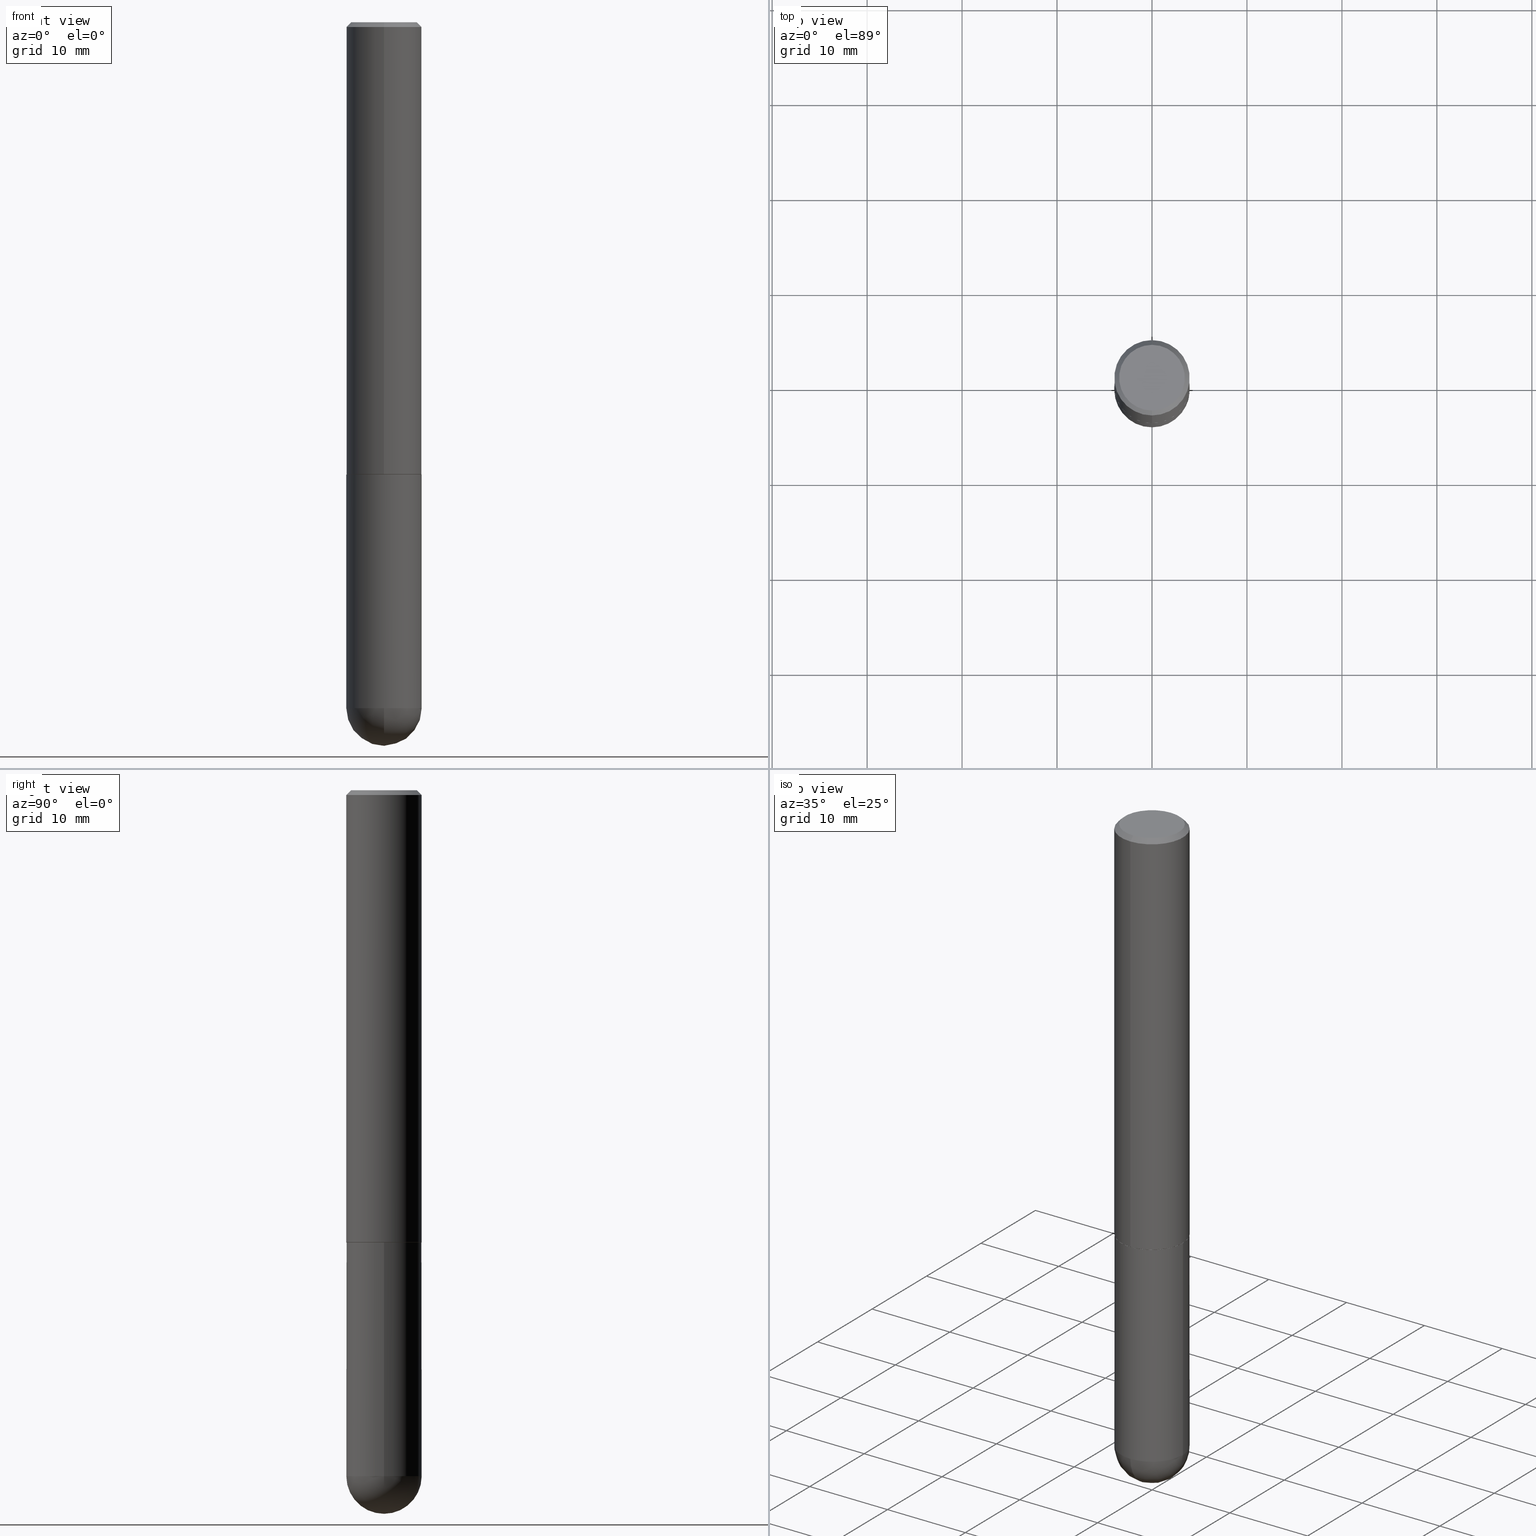
[diagram: canonical four-view strip — front | top / right | iso, engineering-drawing reading convention]
A machine part, canonical four-view strip (front | top / right | iso — engineering-drawing reading convention). The complete STEP part file that produces these views, byte-faithful:
ISO-10303-21;
HEADER;
FILE_DESCRIPTION (( 'STEP AP203' ),
    '1' );
FILE_NAME ('70450.STEP',
    '2024-04-10T12:32:51',
    ( '' ),
    ( '' ),
    'SwSTEP 2.0',
    'SolidWorks 2023',
    '' );
FILE_SCHEMA (( 'CONFIG_CONTROL_DESIGN' ));
ENDSEC;

DATA;
#1 = FACE_OUTER_BOUND ( 'NONE', #37, .T. ) ;
#2 = DIRECTION ( 'NONE',  ( -6.982962677686266711E-15, -1.000000000000000000, 3.492105978576687253E-15 ) ) ;
#3 = DIRECTION ( 'NONE',  ( -6.982962677686265922E-15, -1.000000000000000000, 3.492105978576687648E-15 ) ) ;
#4 = ADVANCED_FACE ( 'NONE', ( #7 ), #5, .T. ) ;
#5 = CONICAL_SURFACE ( 'NONE', #151, 0.1562500000000000000, 0.7853981633974471688 ) ;
#6 = APPROVAL_PERSON_ORGANIZATION ( #332, #121, #397 ) ;
#7 = FACE_OUTER_BOUND ( 'NONE', #19, .T. ) ;
#8 = CARTESIAN_POINT ( 'NONE',  ( 0.000000000000000000, 0.000000000000000000, 0.000000000000000000 ) ) ;
#9 = ADVANCED_FACE ( 'NONE', ( #166 ), #401, .T. ) ;
#10 = CARTESIAN_POINT ( 'NONE',  ( -1.071952812151801215E-15, -0.1562500000000000833, -0.01999999999999948694 ) ) ;
#11 = COORDINATED_UNIVERSAL_TIME_OFFSET ( 5, 0, .BEHIND. ) ;
#12 = AXIS2_PLACEMENT_3D ( 'NONE', #119, #138, #69 ) ;
#13 = AXIS2_PLACEMENT_3D ( 'NONE', #212, #207, #338 ) ;
#14 = DATE_AND_TIME ( #269, #263 ) ;
#15 = ORIENTED_EDGE ( 'NONE', *, *, #169, .T. ) ;
#16 = ADVANCED_FACE ( 'NONE', ( #241 ), #178, .T. ) ;
#17 = CARTESIAN_POINT ( 'NONE',  ( 1.110223024625157329E-15, 0.1562500000000001388, -5.456415591526079257E-16 ) ) ;
#18 = DIRECTION ( 'NONE',  ( 4.937700262164541731E-15, 0.7071067811865442421, -0.7071067811865507924 ) ) ;
#19 = EDGE_LOOP ( 'NONE', ( #402, #295, #337, #40 ) ) ;
#20 = DIRECTION ( 'NONE',  ( 6.982962677686265922E-15, 1.000000000000000000, 0.000000000000000000 ) ) ;
#21 = CARTESIAN_POINT ( 'NONE',  ( 0.000000000000000000, 0.000000000000000000, 0.000000000000000000 ) ) ;
#22 = FACE_OUTER_BOUND ( 'NONE', #246, .T. ) ;
#23 = AXIS2_PLACEMENT_3D ( 'NONE', #114, #367, #111 ) ;
#24 = ORIENTED_EDGE ( 'NONE', *, *, #407, .T. ) ;
#25 = DIRECTION ( 'NONE',  ( -2.445032622590504256E-29, 3.492105978576687648E-15, 1.000000000000000000 ) ) ;
#26 = CARTESIAN_POINT ( 'NONE',  ( -0.1562500000000000000, 1.110223024625156540E-15, -7.685836078523291160E-30 ) ) ;
#27 = EDGE_CURVE ( 'NONE', #261, #381, #289, .T. ) ;
#28 = VECTOR ( 'NONE', #120, 39.37007874015748143 ) ;
#29 = CIRCLE ( 'NONE', #335, 0.1562500000000000000 ) ;
#30 = CARTESIAN_POINT ( 'NONE',  ( -1.084104955710747011E-15, -0.1552500000000065494, -1.874999999999999556 ) ) ;
#31 = FACE_OUTER_BOUND ( 'NONE', #90, .T. ) ;
#32 = SPHERICAL_SURFACE ( 'NONE', #308, 0.1562500000000001110 ) ;
#33 = ADVANCED_FACE ( 'NONE', ( #31 ), #386, .T. ) ;
#34 = CARTESIAN_POINT ( 'NONE',  ( 4.585254011597131119E-29, -6.546527510330898707E-15, -1.875000000000000000 ) ) ;
#35 =( NAMED_UNIT ( * ) PLANE_ANGLE_UNIT ( ) SI_UNIT ( $, .RADIAN. ) );
#36 = AXIS2_PLACEMENT_3D ( 'NONE', #86, #25, #250 ) ;
#37 = EDGE_LOOP ( 'NONE', ( #237, #272 ) ) ;
#38 = APPROVAL_STATUS ( 'not_yet_approved' ) ;
#39 = DIRECTION ( 'NONE',  ( 6.982962677686265133E-15, 1.000000000000000000, -3.496765431890256920E-15 ) ) ;
#40 = ORIENTED_EDGE ( 'NONE', *, *, #227, .T. ) ;
#41 = APPROVAL_DATE_TIME ( #232, #121 ) ;
#42 = ORIENTED_EDGE ( 'NONE', *, *, #94, .T. ) ;
#43 = DIRECTION ( 'NONE',  ( 1.000000000000000000, 0.000000000000000000, 0.000000000000000000 ) ) ;
#44 = CC_DESIGN_SECURITY_CLASSIFICATION ( #365, ( #158 ) ) ;
#45 = ORIENTED_EDGE ( 'NONE', *, *, #109, .F. ) ;
#46 = PERSON_AND_ORGANIZATION ( #278, #128 ) ;
#47 = ADVANCED_FACE ( 'NONE', ( #204 ), #173, .F. ) ;
#48 = PRODUCT ( '70450', '70450', '', ( #268 ) ) ;
#49 = EDGE_CURVE ( 'NONE', #97, #223, #273, .T. ) ;
#50 = DIRECTION ( 'NONE',  ( 5.024295867788490741E-15, 0.7071067811866103003, 0.7071067811864847341 ) ) ;
#51 = DIRECTION ( 'NONE',  ( -6.982962677686266711E-15, -1.000000000000000000, 3.492105978576687253E-15 ) ) ;
#52 = ORIENTED_EDGE ( 'NONE', *, *, #313, .F. ) ;
#53 = CIRCLE ( 'NONE', #118, 0.1362499999999992051 ) ;
#54 = PRODUCT_DEFINITION_SHAPE ( 'NONE', 'NONE',  #233 ) ;
#55 = ORIENTED_EDGE ( 'NONE', *, *, #49, .T. ) ;
#56 = DIRECTION ( 'NONE',  ( -2.445032622590504256E-29, 3.492105978576687648E-15, 1.000000000000000000 ) ) ;
#57 = CARTESIAN_POINT ( 'NONE',  ( 0.000000000000000000, 0.000000000000000000, 0.000000000000000000 ) ) ;
#58 = DIRECTION ( 'NONE',  ( -6.982962677686265922E-15, -1.000000000000000000, 3.492105978576687648E-15 ) ) ;
#59 = UNCERTAINTY_MEASURE_WITH_UNIT (LENGTH_MEASURE( 1.000000000000000082E-05 ), #160, 'distance_accuracy_value', 'NONE');
#60 = AXIS2_PLACEMENT_3D ( 'NONE', #253, #404, #51 ) ;
#61 = CC_DESIGN_APPROVAL ( #121, ( #365 ) ) ;
#62 = DIRECTION ( 'NONE',  ( -6.982962677686265133E-15, -1.000000000000000000, 3.496765431890256920E-15 ) ) ;
#63 = VERTEX_POINT ( 'NONE', #406 ) ;
#64 = EDGE_CURVE ( 'NONE', #369, #97, #198, .T. ) ;
#65 = DIRECTION ( 'NONE',  ( 6.982962677686265922E-15, 1.000000000000000000, -3.496765431890254553E-15 ) ) ;
#66 = VERTEX_POINT ( 'NONE', #193 ) ;
#67 = CARTESIAN_POINT ( 'NONE',  ( 0.000000000000000000, 0.000000000000000000, 0.000000000000000000 ) ) ;
#68 = AXIS2_PLACEMENT_3D ( 'NONE', #57, #310, #221 ) ;
#69 = DIRECTION ( 'NONE',  ( -6.982962677686265922E-15, -1.000000000000000000, 3.496765431890251398E-15 ) ) ;
#70 = CC_DESIGN_PERSON_AND_ORGANIZATION_ASSIGNMENT ( #167, #202, ( #158 ) ) ;
#71 = ORIENTED_EDGE ( 'NONE', *, *, #288, .F. ) ;
#72 = ORIENTED_EDGE ( 'NONE', *, *, #288, .T. ) ;
#73 = AXIS2_PLACEMENT_3D ( 'NONE', #255, #242, #58 ) ;
#74 = CIRCLE ( 'NONE', #307, 0.1562500000000000000 ) ;
#75 = AXIS2_PLACEMENT_3D ( 'NONE', #8, #194, #157 ) ;
#76 = CALENDAR_DATE ( 2024, 10, 4 ) ;
#77 = APPROVAL ( #38, 'UNSPECIFIED' ) ;
#78 = PERSON_AND_ORGANIZATION_ROLE ( 'classification_officer' ) ;
#79 = APPROVAL_ROLE ( '' ) ;
#80 = AXIS2_PLACEMENT_3D ( 'NONE', #21, #247, #303 ) ;
#81 = PERSON_AND_ORGANIZATION_ROLE ( 'design_owner' ) ;
#82 = CC_DESIGN_APPROVAL ( #77, ( #158 ) ) ;
#83 = PRODUCT_RELATED_PRODUCT_CATEGORY ( 'detail', '', ( #48 ) ) ;
#84 = DIRECTION ( 'NONE',  ( -2.445032622590504256E-29, 3.492105978576687648E-15, 1.000000000000000000 ) ) ;
#85 = CARTESIAN_POINT ( 'NONE',  ( -1.091087918388479962E-15, -0.1562500000000001388, 5.456415591526079257E-16 ) ) ;
#86 = CARTESIAN_POINT ( 'NONE',  ( 4.584436167357195620E-29, -6.547698709831289980E-15, -1.875000000000000000 ) ) ;
#87 = CC_DESIGN_PERSON_AND_ORGANIZATION_ASSIGNMENT ( #46, #229, ( #233 ) ) ;
#88 = DIMENSIONAL_EXPONENTS ( 1.000000000000000000, 0.000000000000000000, 0.000000000000000000, 0.000000000000000000, 0.000000000000000000, 0.000000000000000000, 0.000000000000000000 ) ;
#89 = CARTESIAN_POINT ( 'NONE',  ( 4.585254011597131119E-29, -6.546527510330898707E-15, -1.875000000000000000 ) ) ;
#90 = EDGE_LOOP ( 'NONE', ( #383, #211, #154, #134 ) ) ;
#91 = CARTESIAN_POINT ( 'NONE',  ( 6.623182139675095950E-29, -1.040308242547524746E-14, -2.843750000000000000 ) ) ;
#92 = ORIENTED_EDGE ( 'NONE', *, *, #226, .F. ) ;
#93 = CARTESIAN_POINT ( 'NONE',  ( 1.103117597267601089E-15, 0.1552499999999934488, -1.875000000000000666 ) ) ;
#94 = EDGE_CURVE ( 'NONE', #159, #66, #392, .T. ) ;
#95 = VECTOR ( 'NONE', #275, 39.37007874015748143 ) ;
#96 = CARTESIAN_POINT ( 'NONE',  ( -1.110223024625088698E-15, -0.1562500000000102418, -2.843749999999999556 ) ) ;
#97 = VERTEX_POINT ( 'NONE', #177 ) ;
#98 = DIRECTION ( 'NONE',  ( -4.937700262164969294E-15, -0.7071067811866054154, 0.7071067811864896191 ) ) ;
#99 = ORIENTED_EDGE ( 'NONE', *, *, #64, .T. ) ;
#100 =( GEOMETRIC_REPRESENTATION_CONTEXT ( 3 ) GLOBAL_UNCERTAINTY_ASSIGNED_CONTEXT ( ( #59 ) ) GLOBAL_UNIT_ASSIGNED_CONTEXT ( ( #160, #35, #224 ) ) REPRESENTATION_CONTEXT ( 'NONE', 'WORKASPACE' ) );
#101 = ORIENTED_EDGE ( 'NONE', *, *, #190, .F. ) ;
#102 = CARTESIAN_POINT ( 'NONE',  ( 6.623182139675095950E-29, -1.040308242547524746E-14, -2.843750000000000000 ) ) ;
#103 = DIRECTION ( 'NONE',  ( -2.445032622590504256E-29, 3.492105978576687648E-15, 1.000000000000000000 ) ) ;
#104 = APPROVAL_STATUS ( 'not_yet_approved' ) ;
#105 = EDGE_CURVE ( 'NONE', #285, #223, #127, .T. ) ;
#106 = APPROVAL_PERSON_ORGANIZATION ( #266, #139, #197 ) ;
#107 = COORDINATED_UNIVERSAL_TIME_OFFSET ( 5, 0, .BEHIND. ) ;
#108 = PERSON_AND_ORGANIZATION_ROLE ( 'design_supplier' ) ;
#109 = EDGE_CURVE ( 'NONE', #285, #116, #364, .T. ) ;
#110 = CARTESIAN_POINT ( 'NONE',  ( 4.890065245181016640E-31, -6.984211957153386487E-17, -0.02000000000000003511 ) ) ;
#111 = DIRECTION ( 'NONE',  ( -6.982962677686265922E-15, -1.000000000000000000, 3.519288880726909138E-15 ) ) ;
#112 = CARTESIAN_POINT ( 'NONE',  ( -1.084104955710747011E-15, -0.1552500000000065494, -1.874999999999999556 ) ) ;
#113 = ORIENTED_EDGE ( 'NONE', *, *, #105, .T. ) ;
#114 = CARTESIAN_POINT ( 'NONE',  ( 4.584436167357195620E-29, -6.547698709831289980E-15, -1.875000000000000000 ) ) ;
#115 = EDGE_CURVE ( 'NONE', #66, #252, #346, .T. ) ;
#116 = VERTEX_POINT ( 'NONE', #185 ) ;
#117 = DIRECTION ( 'NONE',  ( -6.982962677686265922E-15, -1.000000000000000000, 3.496765431890251398E-15 ) ) ;
#118 = AXIS2_PLACEMENT_3D ( 'NONE', #351, #103, #2 ) ;
#119 = CARTESIAN_POINT ( 'NONE',  ( 4.581991134734604485E-29, -6.544206603852712761E-15, -1.874000000000000110 ) ) ;
#120 = DIRECTION ( 'NONE',  ( -4.851104656540957964E-15, -0.7071067811865491270, -0.7071067811865459074 ) ) ;
#121 = APPROVAL ( #329, 'UNSPECIFIED' ) ;
#122 = ADVANCED_FACE ( 'NONE', ( #403 ), #143, .T. ) ;
#123 = EDGE_LOOP ( 'NONE', ( #297, #305, #125, #244 ) ) ;
#124 = PLANE ( 'NONE',  #73 ) ;
#125 = ORIENTED_EDGE ( 'NONE', *, *, #389, .F. ) ;
#126 = DIRECTION ( 'NONE',  ( -2.445468806185136597E-29, 3.491481338843145583E-15, 1.000000000000000000 ) ) ;
#127 = LINE ( 'NONE', #10, #28 ) ;
#128 = ORGANIZATION ( 'UNSPECIFIED', 'UNSPECIFIED', '' ) ;
#129 = DIRECTION ( 'NONE',  ( 6.982962677686265922E-15, 1.000000000000000000, -3.492105978576687648E-15 ) ) ;
#130 = EDGE_LOOP ( 'NONE', ( #42, #254, #222, #235, #72 ) ) ;
#131 = DIRECTION ( 'NONE',  ( 1.000000000000000000, -6.982962677686262766E-15, 0.000000000000000000 ) ) ;
#132 = DIRECTION ( 'NONE',  ( -2.445468806185136877E-29, 3.491481338843145188E-15, 1.000000000000000000 ) ) ;
#133 = VECTOR ( 'NONE', #282, 39.37007874015748143 ) ;
#134 = ORIENTED_EDGE ( 'NONE', *, *, #94, .F. ) ;
#135 = FACE_OUTER_BOUND ( 'NONE', #366, .T. ) ;
#136 = EDGE_CURVE ( 'NONE', #150, #252, #330, .T. ) ;
#137 = AXIS2_PLACEMENT_3D ( 'NONE', #34, #384, #353 ) ;
#138 = DIRECTION ( 'NONE',  ( -2.445032622590504256E-29, 3.492105978576687648E-15, 1.000000000000000000 ) ) ;
#139 = APPROVAL ( #104, 'UNSPECIFIED' ) ;
#140 = APPLICATION_PROTOCOL_DEFINITION ( 'international standard', 'config_control_design', 1994, #334 ) ;
#141 = CALENDAR_DATE ( 2024, 10, 4 ) ;
#142 = ORIENTED_EDGE ( 'NONE', *, *, #64, .F. ) ;
#143 = CONICAL_SURFACE ( 'NONE', #257, 0.1552499999999999991, 0.7853981633975336552 ) ;
#144 = AXIS2_PLACEMENT_3D ( 'NONE', #89, #314, #152 ) ;
#145 = CARTESIAN_POINT ( 'NONE',  ( 1.091087918388547213E-15, 0.1562499999999898970, -2.843750000000000444 ) ) ;
#146 = CC_DESIGN_DATE_AND_TIME_ASSIGNMENT ( #359, #362, ( #233 ) ) ;
#147 = DIRECTION ( 'NONE',  ( -2.445468806185136597E-29, 3.491481338843145583E-15, 1.000000000000000000 ) ) ;
#148 = ORIENTED_EDGE ( 'NONE', *, *, #248, .F. ) ;
#149 = CARTESIAN_POINT ( 'NONE',  ( 0.1562500000000000000, -9.328801702221526319E-15, -2.843750000000000000 ) ) ;
#150 = VERTEX_POINT ( 'NONE', #344 ) ;
#151 = AXIS2_PLACEMENT_3D ( 'NONE', #361, #358, #39 ) ;
#152 = DIRECTION ( 'NONE',  ( 1.000000000000000000, -6.982962677686269077E-15, 0.000000000000000000 ) ) ;
#153 = ADVANCED_FACE ( 'NONE', ( #22 ), #124, .F. ) ;
#154 = ORIENTED_EDGE ( 'NONE', *, *, #115, .F. ) ;
#155 = LINE ( 'NONE', #93, #208 ) ;
#156 = DIRECTION ( 'NONE',  ( -2.445032622590504256E-29, 3.492105978576687648E-15, 1.000000000000000000 ) ) ;
#157 = DIRECTION ( 'NONE',  ( 1.000000000000000000, -6.982962677686266711E-15, 4.876176775795936353E-29 ) ) ;
#158 = PRODUCT_DEFINITION_FORMATION_WITH_SPECIFIED_SOURCE ( 'ANY', '', #48, .NOT_KNOWN. ) ;
#159 = VERTEX_POINT ( 'NONE', #145 ) ;
#160 =( CONVERSION_BASED_UNIT ( 'INCH', #380 ) LENGTH_UNIT ( ) NAMED_UNIT ( #88 ) );
#161 = DIRECTION ( 'NONE',  ( -2.445032622590504256E-29, 3.492105978576687648E-15, 1.000000000000000000 ) ) ;
#162 = AXIS2_PLACEMENT_3D ( 'NONE', #376, #147, #280 ) ;
#163 = AXIS2_PLACEMENT_3D ( 'NONE', #110, #281, #368 ) ;
#164 = EDGE_CURVE ( 'NONE', #381, #261, #231, .T. ) ;
#165 = EDGE_CURVE ( 'NONE', #116, #63, #284, .T. ) ;
#166 = FACE_OUTER_BOUND ( 'NONE', #123, .T. ) ;
#167 = PERSON_AND_ORGANIZATION ( #278, #128 ) ;
#168 = DATE_TIME_ROLE ( 'classification_date' ) ;
#169 = EDGE_CURVE ( 'NONE', #150, #159, #199, .T. ) ;
#170 = ORIENTED_EDGE ( 'NONE', *, *, #136, .F. ) ;
#171 = AXIS2_PLACEMENT_3D ( 'NONE', #378, #341, #117 ) ;
#172 = PERSON_AND_ORGANIZATION ( #278, #128 ) ;
#173 = PLANE ( 'NONE',  #192 ) ;
#174 = PERSON_AND_ORGANIZATION ( #278, #128 ) ;
#175 = DIRECTION ( 'NONE',  ( -6.982962677686265922E-15, -1.000000000000000000, 3.519288880726909138E-15 ) ) ;
#176 = VERTEX_POINT ( 'NONE', #409 ) ;
#177 = CARTESIAN_POINT ( 'NONE',  ( -1.091087918388434997E-15, -0.1562500000000068001, -1.873999999999999444 ) ) ;
#178 = CONICAL_SURFACE ( 'NONE', #23, 0.1552499999999999991, 0.7853981633975336552 ) ;
#179 = AXIS2_PLACEMENT_3D ( 'NONE', #191, #390, #129 ) ;
#180 = ORIENTED_EDGE ( 'NONE', *, *, #115, .T. ) ;
#181 = CYLINDRICAL_SURFACE ( 'NONE', #68, 0.1562500000000000000 ) ;
#182 = ORIENTED_EDGE ( 'NONE', *, *, #323, .T. ) ;
#183 = DIRECTION ( 'NONE',  ( -6.982962677686265133E-15, -1.000000000000000000, 3.496765431890256920E-15 ) ) ;
#184 = CARTESIAN_POINT ( 'NONE',  ( 4.890065245181016640E-31, -6.984211957153386487E-17, -0.02000000000000003511 ) ) ;
#185 = CARTESIAN_POINT ( 'NONE',  ( 1.021258291611613706E-15, 0.1362499999999992051, 3.523770906621040234E-16 ) ) ;
#186 = LOCAL_TIME ( 8, 32, 51.00000000000000000, #107 ) ;
#187 = CARTESIAN_POINT ( 'NONE',  ( -0.1562500000000000000, -7.127490759207891394E-15, -1.875000000000000000 ) ) ;
#188 = VERTEX_POINT ( 'NONE', #112 ) ;
#189 = CARTESIAN_POINT ( 'NONE',  ( 1.110223024625180601E-15, 0.1562499999999936995, -1.874000000000000554 ) ) ;
#190 = EDGE_CURVE ( 'NONE', #97, #369, #322, .T. ) ;
#191 = CARTESIAN_POINT ( 'NONE',  ( 9.514286648347482384E-16, 0.1362499999999992051, -6.171117445948344714E-17 ) ) ;
#192 = AXIS2_PLACEMENT_3D ( 'NONE', #300, #277, #243 ) ;
#193 = CARTESIAN_POINT ( 'NONE',  ( -0.1562500000000000000, -7.127490759207891394E-15, -2.843750000000000000 ) ) ;
#194 = DIRECTION ( 'NONE',  ( -2.445468806185136597E-29, 3.491481338843145583E-15, 1.000000000000000000 ) ) ;
#195 = APPLICATION_PROTOCOL_DEFINITION ( 'international standard', 'config_control_design', 1994, #374 ) ;
#196 = EDGE_CURVE ( 'NONE', #176, #188, #217, .T. ) ;
#197 = APPROVAL_ROLE ( '' ) ;
#198 = CIRCLE ( 'NONE', #12, 0.1562500000000002498 ) ;
#199 = CIRCLE ( 'NONE', #274, 0.1562500000000001110 ) ;
#200 = APPROVAL_DATE_TIME ( #14, #77 ) ;
#201 = VERTEX_POINT ( 'NONE', #149 ) ;
#202 = PERSON_AND_ORGANIZATION_ROLE ( 'creator' ) ;
#203 = LOCAL_TIME ( 8, 32, 51.00000000000000000, #11 ) ;
#204 = FACE_OUTER_BOUND ( 'NONE', #321, .T. ) ;
#205 = COORDINATED_UNIVERSAL_TIME_OFFSET ( 5, 0, .BEHIND. ) ;
#206 = EDGE_CURVE ( 'NONE', #176, #369, #155, .T. ) ;
#207 = DIRECTION ( 'NONE',  ( -2.445468806185136597E-29, 3.491481338843145583E-15, 1.000000000000000000 ) ) ;
#208 = VECTOR ( 'NONE', #50, 39.37007874015748143 ) ;
#209 = CARTESIAN_POINT ( 'NONE',  ( 4.584436167357195620E-29, -6.547698709831289980E-15, -1.875000000000000000 ) ) ;
#210 = CC_DESIGN_PERSON_AND_ORGANIZATION_ASSIGNMENT ( #356, #81, ( #48 ) ) ;
#211 = ORIENTED_EDGE ( 'NONE', *, *, #136, .T. ) ;
#212 = CARTESIAN_POINT ( 'NONE',  ( 6.954301917588981076E-29, -9.928900057335195583E-15, -2.843750000000000000 ) ) ;
#213 = EDGE_LOOP ( 'NONE', ( #302, #408, #101, #276 ) ) ;
#214 = DIRECTION ( 'NONE',  ( -1.000000000000000000, 7.105427357601001070E-15, -4.926315508542082329E-29 ) ) ;
#215 = ORIENTED_EDGE ( 'NONE', *, *, #165, .F. ) ;
#216 = CARTESIAN_POINT ( 'NONE',  ( 4.584436167357195620E-29, -6.547698709831289980E-15, -1.875000000000000000 ) ) ;
#217 = CIRCLE ( 'NONE', #36, 0.1552499999999999991 ) ;
#218 = DIRECTION ( 'NONE',  ( 6.982962677686265922E-15, 1.000000000000000000, -3.496765431890254553E-15 ) ) ;
#219 = CARTESIAN_POINT ( 'NONE',  ( 6.623182139675095950E-29, -1.040308242547524746E-14, -2.843750000000000000 ) ) ;
#220 = EDGE_CURVE ( 'NONE', #188, #176, #354, .T. ) ;
#221 = DIRECTION ( 'NONE',  ( 1.000000000000000000, -6.982962677686266711E-15, 4.876176775795936353E-29 ) ) ;
#222 = ORIENTED_EDGE ( 'NONE', *, *, #164, .F. ) ;
#223 = VERTEX_POINT ( 'NONE', #373 ) ;
#224 =( NAMED_UNIT ( * ) SI_UNIT ( $, .STERADIAN. ) SOLID_ANGLE_UNIT ( ) );
#225 = AXIS2_PLACEMENT_3D ( 'NONE', #67, #161, #3 ) ;
#226 = EDGE_CURVE ( 'NONE', #369, #63, #304, .T. ) ;
#227 = EDGE_CURVE ( 'NONE', #63, #223, #29, .T. ) ;
#228 = SHAPE_DEFINITION_REPRESENTATION ( #54, #240 ) ;
#229 = PERSON_AND_ORGANIZATION_ROLE ( 'creator' ) ;
#230 = CLOSED_SHELL ( 'NONE', ( #16, #9, #239, #4, #345, #122, #153, #363 ) ) ;
#231 = CIRCLE ( 'NONE', #144, 0.1562500000000000000 ) ;
#232 = DATE_AND_TIME ( #234, #238 ) ;
#233 = PRODUCT_DEFINITION ( 'UNKNOWN', '', #158, #251 ) ;
#234 = CALENDAR_DATE ( 2024, 10, 4 ) ;
#235 = ORIENTED_EDGE ( 'NONE', *, *, #323, .F. ) ;
#236 = DIRECTION ( 'NONE',  ( 0.000000000000000000, 0.000000000000000000, 1.000000000000000000 ) ) ;
#237 = ORIENTED_EDGE ( 'NONE', *, *, #318, .T. ) ;
#238 = LOCAL_TIME ( 8, 32, 51.00000000000000000, #205 ) ;
#239 = ADVANCED_FACE ( 'NONE', ( #400 ), #372, .T. ) ;
#240 = ADVANCED_BREP_SHAPE_REPRESENTATION ( '70450', ( #309, #306, #267 ), #100 ) ;
#241 = FACE_OUTER_BOUND ( 'NONE', #213, .T. ) ;
#242 = DIRECTION ( 'NONE',  ( -2.445032622590503976E-29, 3.492105978576687648E-15, 1.000000000000000000 ) ) ;
#243 = DIRECTION ( 'NONE',  ( -1.000000000000000000, 6.982962677686265922E-15, -4.876176775795935793E-29 ) ) ;
#244 = ORIENTED_EDGE ( 'NONE', *, *, #49, .F. ) ;
#245 = CARTESIAN_POINT ( 'NONE',  ( 6.623182139675095950E-29, -1.040308242547524746E-14, -2.843750000000000000 ) ) ;
#246 = EDGE_LOOP ( 'NONE', ( #336, #294 ) ) ;
#247 = DIRECTION ( 'NONE',  ( -2.445032622590504256E-29, 3.492105978576687648E-15, 1.000000000000000000 ) ) ;
#248 = EDGE_CURVE ( 'NONE', #252, #201, #331, .T. ) ;
#249 = ADVANCED_FACE ( 'NONE', ( #342 ), #181, .T. ) ;
#250 = DIRECTION ( 'NONE',  ( -6.982962677686265922E-15, -1.000000000000000000, 3.519288880726909138E-15 ) ) ;
#251 = DESIGN_CONTEXT ( 'detailed design', #334, 'design' ) ;
#252 = VERTEX_POINT ( 'NONE', #96 ) ;
#253 = CARTESIAN_POINT ( 'NONE',  ( -2.024918633708373989E-44, 2.892080212579088127E-30, 8.281765302431748671E-16 ) ) ;
#254 = ORIENTED_EDGE ( 'NONE', *, *, #313, .T. ) ;
#255 = CARTESIAN_POINT ( 'NONE',  ( 4.584436167357195620E-29, -6.547698709831289980E-15, -1.875000000000000000 ) ) ;
#256 = AXIS2_PLACEMENT_3D ( 'NONE', #91, #214, #411 ) ;
#257 = AXIS2_PLACEMENT_3D ( 'NONE', #216, #286, #315 ) ;
#258 = CIRCLE ( 'NONE', #399, 0.1562500000000000000 ) ;
#259 = CARTESIAN_POINT ( 'NONE',  ( -1.003347832174083517E-15, -0.1362499999999992051, 1.303975969824245809E-15 ) ) ;
#260 = DIRECTION ( 'NONE',  ( -2.445468806185136597E-29, 3.491481338843145583E-15, 1.000000000000000000 ) ) ;
#261 = VERTEX_POINT ( 'NONE', #187 ) ;
#262 = LINE ( 'NONE', #327, #405 ) ;
#263 = LOCAL_TIME ( 8, 32, 51.00000000000000000, #298 ) ;
#264 = DIRECTION ( 'NONE',  ( 1.000000000000000000, -6.982962677686262766E-15, 0.000000000000000000 ) ) ;
#265 = DIRECTION ( 'NONE',  ( -1.000000000000000000, 6.982962677686265922E-15, -4.883557194083112901E-29 ) ) ;
#266 = PERSON_AND_ORGANIZATION ( #278, #128 ) ;
#267 = AXIS2_PLACEMENT_3D ( 'NONE', #395, #236, #43 ) ;
#268 = MECHANICAL_CONTEXT ( 'NONE', #374, 'mechanical' ) ;
#269 = CALENDAR_DATE ( 2024, 10, 4 ) ;
#270 = CC_DESIGN_PERSON_AND_ORGANIZATION_ASSIGNMENT ( #174, #108, ( #158 ) ) ;
#271 = SECURITY_CLASSIFICATION_LEVEL ( 'unclassified' ) ;
#272 = ORIENTED_EDGE ( 'NONE', *, *, #109, .T. ) ;
#273 = LINE ( 'NONE', #85, #133 ) ;
#274 = AXIS2_PLACEMENT_3D ( 'NONE', #245, #370, #20 ) ;
#275 = DIRECTION ( 'NONE',  ( -2.445032622590504256E-29, 3.492105978576687648E-15, 1.000000000000000000 ) ) ;
#276 = ORIENTED_EDGE ( 'NONE', *, *, #407, .F. ) ;
#277 = DIRECTION ( 'NONE',  ( 2.438088387897960049E-29, -3.491481338843145188E-15, -1.000000000000000000 ) ) ;
#278 = PERSON ( 'UNSPECIFIED', 'UNSPECIFIED', 'UNSPECIFIED', ('UNSPECIFIED'), ('UNSPECIFIED'), ('UNSPECIFIED') ) ;
#279 = EDGE_LOOP ( 'NONE', ( #52, #180, #343, #182, #377 ) ) ;
#280 = DIRECTION ( 'NONE',  ( 1.000000000000000000, -6.982962677686262766E-15, 0.000000000000000000 ) ) ;
#281 = DIRECTION ( 'NONE',  ( 2.445032622590504256E-29, -3.492105978576687648E-15, -1.000000000000000000 ) ) ;
#282 = DIRECTION ( 'NONE',  ( -2.445032622590504256E-29, 3.492105978576687648E-15, 1.000000000000000000 ) ) ;
#283 = CLOSED_SHELL ( 'NONE', ( #249, #33, #357, #47, #293 ) ) ;
#284 = LINE ( 'NONE', #317, #339 ) ;
#285 = VERTEX_POINT ( 'NONE', #259 ) ;
#286 = DIRECTION ( 'NONE',  ( -2.445032622590504256E-29, 3.492105978576687648E-15, 1.000000000000000000 ) ) ;
#287 = CC_DESIGN_DATE_AND_TIME_ASSIGNMENT ( #299, #168, ( #365 ) ) ;
#288 = EDGE_CURVE ( 'NONE', #201, #159, #258, .T. ) ;
#289 = CIRCLE ( 'NONE', #137, 0.1562500000000000000 ) ;
#290 = DIRECTION ( 'NONE',  ( -1.000000000000000000, 6.982962677686265922E-15, -4.883557194083112901E-29 ) ) ;
#291 = ORIENTED_EDGE ( 'NONE', *, *, #164, .T. ) ;
#292 = DIRECTION ( 'NONE',  ( -2.445468806185136877E-29, 3.491481338843145188E-15, 1.000000000000000000 ) ) ;
#293 = ADVANCED_FACE ( 'NONE', ( #296 ), #385, .T. ) ;
#294 = ORIENTED_EDGE ( 'NONE', *, *, #196, .F. ) ;
#295 = ORIENTED_EDGE ( 'NONE', *, *, #318, .F. ) ;
#296 = FACE_OUTER_BOUND ( 'NONE', #279, .T. ) ;
#297 = ORIENTED_EDGE ( 'NONE', *, *, #190, .T. ) ;
#298 = COORDINATED_UNIVERSAL_TIME_OFFSET ( 5, 0, .BEHIND. ) ;
#299 = DATE_AND_TIME ( #396, #186 ) ;
#300 = CARTESIAN_POINT ( 'NONE',  ( 1.091087918388524927E-15, 0.1562499999999934497, -1.875000000000000666 ) ) ;
#301 = PERSON_AND_ORGANIZATION ( #278, #128 ) ;
#302 = ORIENTED_EDGE ( 'NONE', *, *, #220, .T. ) ;
#303 = DIRECTION ( 'NONE',  ( -6.982962677686265922E-15, -1.000000000000000000, 3.492105978576687648E-15 ) ) ;
#304 = LINE ( 'NONE', #17, #95 ) ;
#305 = ORIENTED_EDGE ( 'NONE', *, *, #226, .T. ) ;
#306 = MANIFOLD_SOLID_BREP ( 'Body-Move/Copy2[2]', #230 ) ;
#307 = AXIS2_PLACEMENT_3D ( 'NONE', #382, #156, #62 ) ;
#308 = AXIS2_PLACEMENT_3D ( 'NONE', #219, #290, #65 ) ;
#309 = MANIFOLD_SOLID_BREP ( 'Body-Move/Copy2[1]', #283 ) ;
#310 = DIRECTION ( 'NONE',  ( -2.445468806185136597E-29, 3.491481338843145583E-15, 1.000000000000000000 ) ) ;
#311 = ORIENTED_EDGE ( 'NONE', *, *, #389, .T. ) ;
#312 = EDGE_LOOP ( 'NONE', ( #170, #15, #71, #148 ) ) ;
#313 = EDGE_CURVE ( 'NONE', #66, #261, #319, .T. ) ;
#314 = DIRECTION ( 'NONE',  ( -2.445468806185136597E-29, 3.491481338843145583E-15, 1.000000000000000000 ) ) ;
#315 = DIRECTION ( 'NONE',  ( -6.982962677686265922E-15, -1.000000000000000000, 3.519288880726909138E-15 ) ) ;
#316 = VECTOR ( 'NONE', #292, 39.37007874015748143 ) ;
#317 = CARTESIAN_POINT ( 'NONE',  ( 1.091087918388479568E-15, 0.1562499999999999445, -0.02000000000000057981 ) ) ;
#318 = EDGE_CURVE ( 'NONE', #116, #285, #53, .T. ) ;
#319 = LINE ( 'NONE', #26, #316 ) ;
#320 = FACE_OUTER_BOUND ( 'NONE', #312, .T. ) ;
#321 = EDGE_LOOP ( 'NONE', ( #291, #388 ) ) ;
#322 = CIRCLE ( 'NONE', #171, 0.1562500000000002498 ) ;
#323 = EDGE_CURVE ( 'NONE', #201, #381, #262, .T. ) ;
#324 = CARTESIAN_POINT ( 'NONE',  ( 0.1562500000000000000, -7.637615428719378669E-15, -1.875000000000000000 ) ) ;
#325 = ORIENTED_EDGE ( 'NONE', *, *, #227, .F. ) ;
#326 = CARTESIAN_POINT ( 'NONE',  ( 6.954301917588981076E-29, -9.928900057335195583E-15, -2.843750000000000000 ) ) ;
#327 = CARTESIAN_POINT ( 'NONE',  ( 0.1562500000000000000, -1.091087918388479174E-15, 7.619026212181150377E-30 ) ) ;
#328 = CARTESIAN_POINT ( 'NONE',  ( 6.954301917588981076E-29, -9.928900057335195583E-15, -2.843750000000000000 ) ) ;
#329 = APPROVAL_STATUS ( 'not_yet_approved' ) ;
#330 = CIRCLE ( 'NONE', #256, 0.1562500000000001110 ) ;
#331 = CIRCLE ( 'NONE', #13, 0.1562500000000000000 ) ;
#332 = PERSON_AND_ORGANIZATION ( #278, #128 ) ;
#333 = APPROVAL_DATE_TIME ( #391, #139 ) ;
#334 = APPLICATION_CONTEXT ( 'configuration controlled 3d designs of mechanical parts and assemblies' ) ;
#335 = AXIS2_PLACEMENT_3D ( 'NONE', #184, #56, #183 ) ;
#336 = ORIENTED_EDGE ( 'NONE', *, *, #220, .F. ) ;
#337 = ORIENTED_EDGE ( 'NONE', *, *, #165, .T. ) ;
#338 = DIRECTION ( 'NONE',  ( 1.000000000000000000, -6.982962677686262766E-15, 0.000000000000000000 ) ) ;
#339 = VECTOR ( 'NONE', #18, 39.37007874015748143 ) ;
#340 = EDGE_LOOP ( 'NONE', ( #410, #350, #24, #142 ) ) ;
#341 = DIRECTION ( 'NONE',  ( -2.445032622590504256E-29, 3.492105978576687648E-15, 1.000000000000000000 ) ) ;
#342 = FACE_OUTER_BOUND ( 'NONE', #130, .T. ) ;
#343 = ORIENTED_EDGE ( 'NONE', *, *, #248, .T. ) ;
#344 = CARTESIAN_POINT ( 'NONE',  ( 7.011967627275736641E-29, -1.093905883155115073E-14, -3.000000000000000444 ) ) ;
#345 = ADVANCED_FACE ( 'NONE', ( #135 ), #348, .T. ) ;
#346 = CIRCLE ( 'NONE', #162, 0.1562500000000000000 ) ;
#347 = CC_DESIGN_APPROVAL ( #139, ( #233 ) ) ;
#348 = CYLINDRICAL_SURFACE ( 'NONE', #225, 0.1562500000000001388 ) ;
#349 = PLANE ( 'NONE',  #179 ) ;
#350 = ORIENTED_EDGE ( 'NONE', *, *, #196, .T. ) ;
#351 = CARTESIAN_POINT ( 'NONE',  ( -2.024918633708373989E-44, 2.892080212579088127E-30, 8.281765302431748671E-16 ) ) ;
#352 = EDGE_LOOP ( 'NONE', ( #45, #113, #311, #215 ) ) ;
#353 = DIRECTION ( 'NONE',  ( 1.000000000000000000, -6.982962677686269077E-15, 0.000000000000000000 ) ) ;
#354 = CIRCLE ( 'NONE', #379, 0.1552499999999999991 ) ;
#355 = LINE ( 'NONE', #30, #360 ) ;
#356 = PERSON_AND_ORGANIZATION ( #278, #128 ) ;
#357 = ADVANCED_FACE ( 'NONE', ( #320 ), #32, .T. ) ;
#358 = DIRECTION ( 'NONE',  ( 2.445032622590504256E-29, -3.492105978576687648E-15, -1.000000000000000000 ) ) ;
#359 = DATE_AND_TIME ( #141, #203 ) ;
#360 = VECTOR ( 'NONE', #98, 39.37007874015748143 ) ;
#361 = CARTESIAN_POINT ( 'NONE',  ( 4.890065245181016640E-31, -6.984211957153386487E-17, -0.02000000000000003511 ) ) ;
#362 = DATE_TIME_ROLE ( 'creation_date' ) ;
#363 = ADVANCED_FACE ( 'NONE', ( #1 ), #349, .F. ) ;
#364 = CIRCLE ( 'NONE', #60, 0.1362499999999992051 ) ;
#365 = SECURITY_CLASSIFICATION ( '', '', #271 ) ;
#366 = EDGE_LOOP ( 'NONE', ( #92, #99, #55, #325 ) ) ;
#367 = DIRECTION ( 'NONE',  ( -2.445032622590504256E-29, 3.492105978576687648E-15, 1.000000000000000000 ) ) ;
#368 = DIRECTION ( 'NONE',  ( 6.982962677686265133E-15, 1.000000000000000000, -3.496765431890256920E-15 ) ) ;
#369 = VERTEX_POINT ( 'NONE', #189 ) ;
#370 = DIRECTION ( 'NONE',  ( 1.000000000000000000, -6.982962677686265922E-15, 4.883557194083112340E-29 ) ) ;
#371 = AXIS2_PLACEMENT_3D ( 'NONE', #102, #265, #218 ) ;
#372 = CONICAL_SURFACE ( 'NONE', #163, 0.1562500000000000000, 0.7853981633974471688 ) ;
#373 = CARTESIAN_POINT ( 'NONE',  ( -1.071952812151801215E-15, -0.1562500000000000833, -0.01999999999999948694 ) ) ;
#374 = APPLICATION_CONTEXT ( 'configuration controlled 3d designs of mechanical parts and assemblies' ) ;
#375 = CC_DESIGN_PERSON_AND_ORGANIZATION_ASSIGNMENT ( #172, #78, ( #365 ) ) ;
#376 = CARTESIAN_POINT ( 'NONE',  ( 6.954301917588981076E-29, -9.928900057335195583E-15, -2.843750000000000000 ) ) ;
#377 = ORIENTED_EDGE ( 'NONE', *, *, #27, .F. ) ;
#378 = CARTESIAN_POINT ( 'NONE',  ( 4.581991134734604485E-29, -6.544206603852712761E-15, -1.874000000000000110 ) ) ;
#379 = AXIS2_PLACEMENT_3D ( 'NONE', #209, #84, #175 ) ;
#380 = LENGTH_MEASURE_WITH_UNIT ( LENGTH_MEASURE( 0.02539999999999999897 ), #412 );
#381 = VERTEX_POINT ( 'NONE', #324 ) ;
#382 = CARTESIAN_POINT ( 'NONE',  ( 4.890065245181016640E-31, -6.984211957153386487E-17, -0.02000000000000003511 ) ) ;
#383 = ORIENTED_EDGE ( 'NONE', *, *, #169, .F. ) ;
#384 = DIRECTION ( 'NONE',  ( -2.445468806185136597E-29, 3.491481338843145583E-15, 1.000000000000000000 ) ) ;
#385 = CYLINDRICAL_SURFACE ( 'NONE', #75, 0.1562500000000000000 ) ;
#386 = SPHERICAL_SURFACE ( 'NONE', #371, 0.1562500000000001110 ) ;
#387 = LOCAL_TIME ( 8, 32, 51.00000000000000000, #393 ) ;
#388 = ORIENTED_EDGE ( 'NONE', *, *, #27, .T. ) ;
#389 = EDGE_CURVE ( 'NONE', #223, #63, #74, .T. ) ;
#390 = DIRECTION ( 'NONE',  ( 2.445032622590503976E-29, -3.492105978576687648E-15, -1.000000000000000000 ) ) ;
#391 = DATE_AND_TIME ( #76, #387 ) ;
#392 = CIRCLE ( 'NONE', #398, 0.1562500000000000000 ) ;
#393 = COORDINATED_UNIVERSAL_TIME_OFFSET ( 5, 0, .BEHIND. ) ;
#394 = APPROVAL_PERSON_ORGANIZATION ( #301, #77, #79 ) ;
#395 = CARTESIAN_POINT ( 'NONE',  ( 0.000000000000000000, 0.000000000000000000, 0.000000000000000000 ) ) ;
#396 = CALENDAR_DATE ( 2024, 10, 4 ) ;
#397 = APPROVAL_ROLE ( '' ) ;
#398 = AXIS2_PLACEMENT_3D ( 'NONE', #326, #260, #131 ) ;
#399 = AXIS2_PLACEMENT_3D ( 'NONE', #328, #126, #264 ) ;
#400 = FACE_OUTER_BOUND ( 'NONE', #352, .T. ) ;
#401 = CYLINDRICAL_SURFACE ( 'NONE', #80, 0.1562500000000001388 ) ;
#402 = ORIENTED_EDGE ( 'NONE', *, *, #105, .F. ) ;
#403 = FACE_OUTER_BOUND ( 'NONE', #340, .T. ) ;
#404 = DIRECTION ( 'NONE',  ( -2.445032622590504256E-29, 3.492105978576687648E-15, 1.000000000000000000 ) ) ;
#405 = VECTOR ( 'NONE', #132, 39.37007874015748143 ) ;
#406 = CARTESIAN_POINT ( 'NONE',  ( 1.091087918388479568E-15, 0.1562499999999999445, -0.02000000000000057981 ) ) ;
#407 = EDGE_CURVE ( 'NONE', #188, #97, #355, .T. ) ;
#408 = ORIENTED_EDGE ( 'NONE', *, *, #206, .T. ) ;
#409 = CARTESIAN_POINT ( 'NONE',  ( 1.106670310946402382E-15, 0.1552499999999934488, -1.875000000000000666 ) ) ;
#410 = ORIENTED_EDGE ( 'NONE', *, *, #206, .F. ) ;
#411 = DIRECTION ( 'NONE',  ( -7.105427357601000281E-15, -1.000000000000000000, 0.000000000000000000 ) ) ;
#412 =( LENGTH_UNIT ( ) NAMED_UNIT ( * ) SI_UNIT ( $, .METRE. ) );
ENDSEC;
END-ISO-10303-21;
